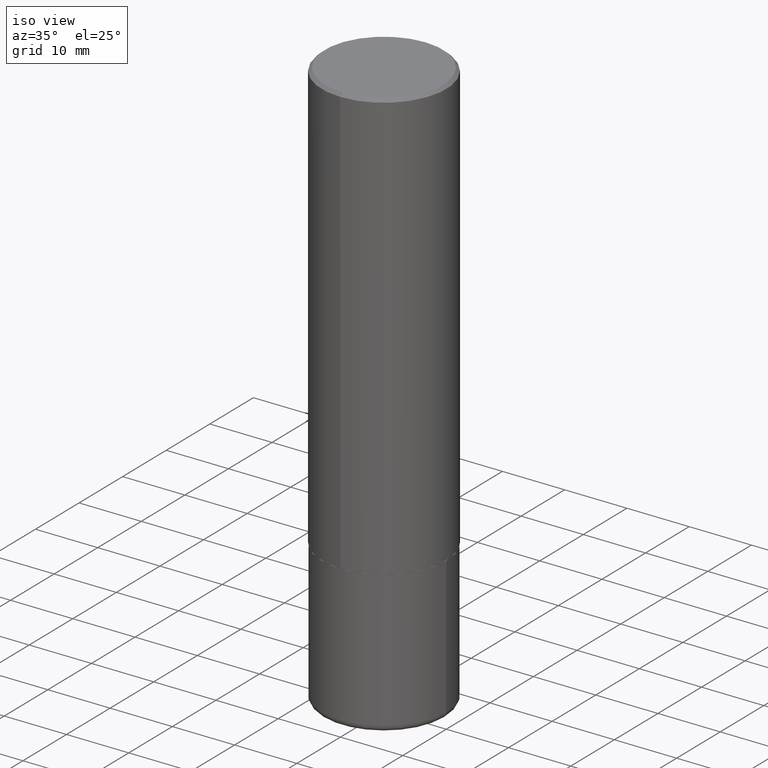
[diagram: clean part render]
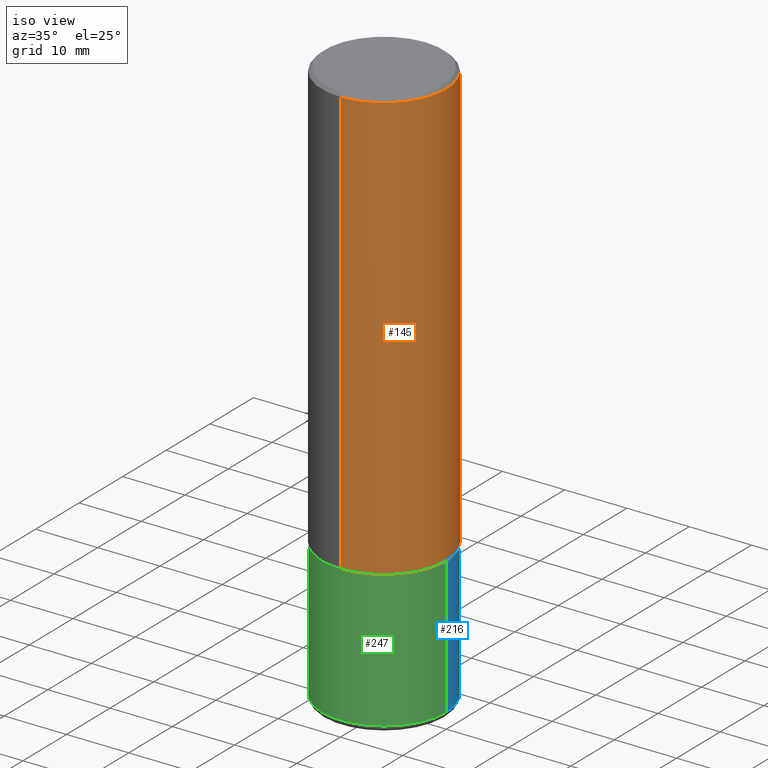
[diagram: same view with three faces highlighted in distinct colors, each labeled with its STEP entity id]
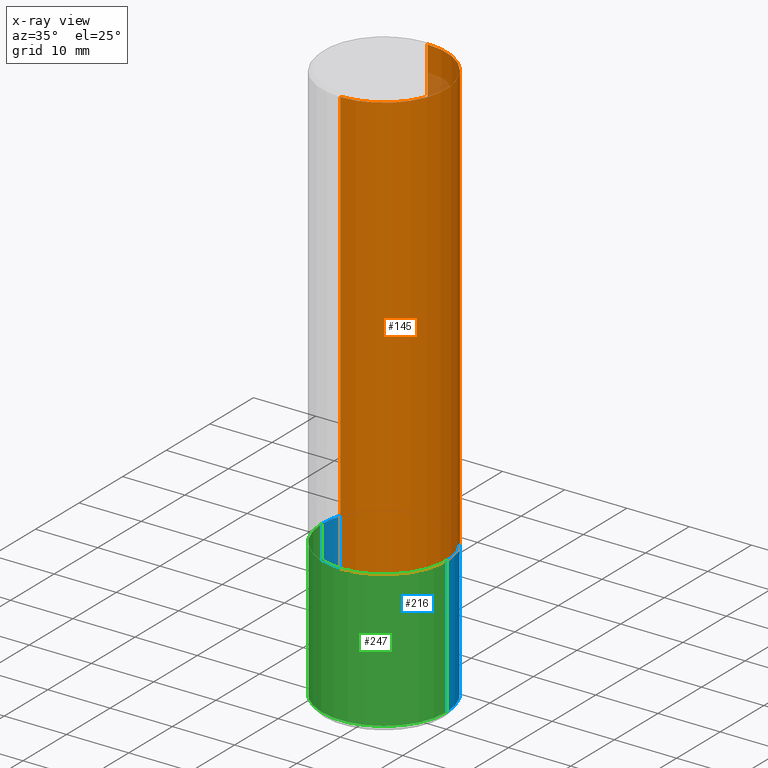
[diagram: x-ray of the same camera — body ghosted, the three highlighted faces saturated]
A machine part, iso view with three faces highlighted in distinct colors.
The next image is the same camera in x-ray (body ghosted, the three faces saturated) — at least one of them is partly hidden behind the body in this view.
Their STEP definitions:

[orange] entity #145 — the highlighted cylindrical surface (partial cylindrical patch) has radius 10 mm, axis along (-0, 0, 1).
#1 = CARTESIAN_POINT ( 'NONE',  ( 6.641805514718476328E-29, -9.479492231809431685E-15, -2.715500000000000025 ) ) ;
#3 = DIRECTION ( 'NONE',  ( -2.445886766605957047E-29, 3.490882795731700761E-15, 1.000000000000000000 ) ) ;
#7 = LINE ( 'NONE', #242, #141 ) ;
#22 = DIRECTION ( 'NONE',  ( -2.445886766605957047E-29, 3.490882795731700761E-15, 1.000000000000000000 ) ) ;
#25 = CARTESIAN_POINT ( 'NONE',  ( 2.749192406205083217E-15, 0.3936999999999999389, -0.02000000000000146105 ) ) ;
#31 = VECTOR ( 'NONE', #59, 39.37007874015748143 ) ;
#52 = AXIS2_PLACEMENT_3D ( 'NONE', #380, #411, #185 ) ;
#54 = ORIENTED_EDGE ( 'NONE', *, *, #278, .T. ) ;
#59 = DIRECTION ( 'NONE',  ( -2.445886766605957047E-29, 3.490882795731700761E-15, 1.000000000000000000 ) ) ;
#69 = DIRECTION ( 'NONE',  ( -2.445886766605957047E-29, 3.490882795731700761E-15, 1.000000000000000000 ) ) ;
#84 = ORIENTED_EDGE ( 'NONE', *, *, #352, .F. ) ;
#95 = DIRECTION ( 'NONE',  ( -6.982962677686265133E-15, -1.000000000000000000, 4.163344669033670901E-15 ) ) ;
#101 = VERTEX_POINT ( 'NONE', #209 ) ;
#140 = CARTESIAN_POINT ( 'NONE',  ( 2.797406750687549496E-15, 0.3936999999999908906, -2.715500000000001801 ) ) ;
#141 = VECTOR ( 'NONE', #22, 39.37007874015748143 ) ;
#145 = ADVANCED_FACE ( 'NONE', ( #212 ), #407, .T. ) ;
#149 = EDGE_LOOP ( 'NONE', ( #54, #328, #84, #254 ) ) ;
#155 = CARTESIAN_POINT ( 'NONE',  ( -2.749192406205018924E-15, -0.3937000000000098754, -2.715499999999998249 ) ) ;
#179 = EDGE_CURVE ( 'NONE', #317, #101, #214, .T. ) ;
#185 = DIRECTION ( 'NONE',  ( -6.982962677686265922E-15, -1.000000000000000000, 3.490882795731701156E-15 ) ) ;
#209 = CARTESIAN_POINT ( 'NONE',  ( -2.700978061722651252E-15, -0.3937000000000001054, -0.01999999999999870978 ) ) ;
#212 = FACE_OUTER_BOUND ( 'NONE', #149, .T. ) ;
#214 = LINE ( 'NONE', #344, #31 ) ;
#224 = DIRECTION ( 'NONE',  ( -6.982962677686265133E-15, -1.000000000000000000, 3.491137977679279424E-15 ) ) ;
#242 = CARTESIAN_POINT ( 'NONE',  ( 2.797406750687515575E-15, 0.3937000000000002164, -1.374360556679571455E-15 ) ) ;
#251 = CIRCLE ( 'NONE', #345, 0.3937000000000000499 ) ;
#254 = ORIENTED_EDGE ( 'NONE', *, *, #179, .F. ) ;
#278 = EDGE_CURVE ( 'NONE', #317, #397, #285, .T. ) ;
#285 = CIRCLE ( 'NONE', #339, 0.3937000000000003830 ) ;
#317 = VERTEX_POINT ( 'NONE', #155 ) ;
#328 = ORIENTED_EDGE ( 'NONE', *, *, #384, .T. ) ;
#339 = AXIS2_PLACEMENT_3D ( 'NONE', #1, #69, #95 ) ;
#344 = CARTESIAN_POINT ( 'NONE',  ( -2.749192406205084400E-15, -0.3937000000000002164, 1.374360556679571455E-15 ) ) ;
#345 = AXIS2_PLACEMENT_3D ( 'NONE', #392, #3, #224 ) ;
#352 = EDGE_CURVE ( 'NONE', #101, #395, #251, .T. ) ;
#380 = CARTESIAN_POINT ( 'NONE',  ( 0.000000000000000000, 0.000000000000000000, 0.000000000000000000 ) ) ;
#384 = EDGE_CURVE ( 'NONE', #397, #395, #7, .T. ) ;
#392 = CARTESIAN_POINT ( 'NONE',  ( 4.891773533211934694E-31, -6.981765591463430858E-17, -0.02000000000000008715 ) ) ;
#395 = VERTEX_POINT ( 'NONE', #25 ) ;
#397 = VERTEX_POINT ( 'NONE', #140 ) ;
#407 = CYLINDRICAL_SURFACE ( 'NONE', #52, 0.3937000000000002164 ) ;
#411 = DIRECTION ( 'NONE',  ( -2.445886766605957047E-29, 3.490882795731700761E-15, 1.000000000000000000 ) ) ;

[blue] entity #216 — the highlighted cylindrical surface (partial cylindrical patch) has radius 10 mm, axis along (-0, 0, 1).
#19 = ORIENTED_EDGE ( 'NONE', *, *, #272, .F. ) ;
#30 = VERTEX_POINT ( 'NONE', #234 ) ;
#32 = VERTEX_POINT ( 'NONE', #364 ) ;
#62 = FACE_OUTER_BOUND ( 'NONE', #366, .T. ) ;
#64 = DIRECTION ( 'NONE',  ( -2.445468806185136877E-29, 3.491481338843145188E-15, 1.000000000000000000 ) ) ;
#94 = DIRECTION ( 'NONE',  ( 1.000000000000000000, -6.982962677686267499E-15, 0.000000000000000000 ) ) ;
#97 = DIRECTION ( 'NONE',  ( -2.445468806185136597E-29, 3.491481338843145583E-15, 1.000000000000000000 ) ) ;
#104 = VERTEX_POINT ( 'NONE', #178 ) ;
#121 = DIRECTION ( 'NONE',  ( -2.445468806185136877E-29, 3.491481338843145188E-15, 1.000000000000000000 ) ) ;
#124 = DIRECTION ( 'NONE',  ( 1.000000000000000000, -6.982962677686267499E-15, 0.000000000000000000 ) ) ;
#178 = CARTESIAN_POINT ( 'NONE',  ( -0.3937000000000001054, -9.711174293851935623E-15, -3.582599999999999785 ) ) ;
#184 = CARTESIAN_POINT ( 'NONE',  ( 6.643116012001922516E-29, -9.484609056967403598E-15, -2.716499999999999915 ) ) ;
#190 = CARTESIAN_POINT ( 'NONE',  ( -0.3937000000000000499, 2.797406750687514786E-15, -1.936584745033356735E-29 ) ) ;
#201 = EDGE_CURVE ( 'NONE', #104, #32, #277, .T. ) ;
#216 = ADVANCED_FACE ( 'NONE', ( #62 ), #406, .T. ) ;
#226 = CARTESIAN_POINT ( 'NONE',  ( 0.3937000000000000499, -1.223380146317248839E-14, -2.716499999999999915 ) ) ;
#234 = CARTESIAN_POINT ( 'NONE',  ( 0.3937000000000001054, -1.525777345074453441E-14, -3.582599999999999785 ) ) ;
#246 = DIRECTION ( 'NONE',  ( -2.445468806185136597E-29, 3.491481338843145583E-15, 1.000000000000000000 ) ) ;
#248 = AXIS2_PLACEMENT_3D ( 'NONE', #362, #97, #124 ) ;
#265 = EDGE_CURVE ( 'NONE', #30, #360, #283, .T. ) ;
#272 = EDGE_CURVE ( 'NONE', #360, #32, #319, .T. ) ;
#277 = LINE ( 'NONE', #190, #307 ) ;
#280 = VECTOR ( 'NONE', #121, 39.37007874015748143 ) ;
#281 = CARTESIAN_POINT ( 'NONE',  ( 0.000000000000000000, 0.000000000000000000, 0.000000000000000000 ) ) ;
#283 = LINE ( 'NONE', #418, #280 ) ;
#299 = AXIS2_PLACEMENT_3D ( 'NONE', #184, #410, #94 ) ;
#307 = VECTOR ( 'NONE', #64, 39.37007874015748143 ) ;
#309 = DIRECTION ( 'NONE',  ( 1.000000000000000000, -6.982962677686265922E-15, 4.876176775795935793E-29 ) ) ;
#319 = CIRCLE ( 'NONE', #299, 0.3937000000000000499 ) ;
#331 = CIRCLE ( 'NONE', #248, 0.3937000000000000499 ) ;
#332 = ORIENTED_EDGE ( 'NONE', *, *, #348, .T. ) ;
#348 = EDGE_CURVE ( 'NONE', #30, #104, #331, .T. ) ;
#357 = ORIENTED_EDGE ( 'NONE', *, *, #201, .T. ) ;
#360 = VERTEX_POINT ( 'NONE', #226 ) ;
#362 = CARTESIAN_POINT ( 'NONE',  ( 8.761136545038868759E-29, -1.250858104453945120E-14, -3.582599999999999785 ) ) ;
#364 = CARTESIAN_POINT ( 'NONE',  ( -0.3937000000000000499, -8.199188300065914189E-15, -2.716499999999999915 ) ) ;
#366 = EDGE_LOOP ( 'NONE', ( #332, #357, #19, #398 ) ) ;
#398 = ORIENTED_EDGE ( 'NONE', *, *, #265, .F. ) ;
#406 = CYLINDRICAL_SURFACE ( 'NONE', #414, 0.3937000000000000499 ) ;
#410 = DIRECTION ( 'NONE',  ( -2.445468806185136597E-29, 3.491481338843145583E-15, 1.000000000000000000 ) ) ;
#414 = AXIS2_PLACEMENT_3D ( 'NONE', #281, #246, #309 ) ;
#418 = CARTESIAN_POINT ( 'NONE',  ( 0.3937000000000000499, -2.749192406205083217E-15, 1.919750796630860172E-29 ) ) ;

[green] entity #247 — the highlighted cylindrical surface (partial cylindrical patch) has radius 10 mm, axis along (-0, 0, 1).
#26 = CIRCLE ( 'NONE', #232, 0.3937000000000000499 ) ;
#29 = DIRECTION ( 'NONE',  ( -2.445468806185136597E-29, 3.491481338843145583E-15, 1.000000000000000000 ) ) ;
#30 = VERTEX_POINT ( 'NONE', #234 ) ;
#32 = VERTEX_POINT ( 'NONE', #364 ) ;
#33 = DIRECTION ( 'NONE',  ( 1.000000000000000000, -6.982962677686265922E-15, 4.876176775795935793E-29 ) ) ;
#34 = DIRECTION ( 'NONE',  ( -2.445468806185136597E-29, 3.491481338843145583E-15, 1.000000000000000000 ) ) ;
#64 = DIRECTION ( 'NONE',  ( -2.445468806185136877E-29, 3.491481338843145188E-15, 1.000000000000000000 ) ) ;
#88 = EDGE_LOOP ( 'NONE', ( #229, #292, #367, #356 ) ) ;
#104 = VERTEX_POINT ( 'NONE', #178 ) ;
#116 = CARTESIAN_POINT ( 'NONE',  ( 8.761136545038868759E-29, -1.250858104453945120E-14, -3.582599999999999785 ) ) ;
#121 = DIRECTION ( 'NONE',  ( -2.445468806185136877E-29, 3.491481338843145188E-15, 1.000000000000000000 ) ) ;
#143 = DIRECTION ( 'NONE',  ( 1.000000000000000000, -6.982962677686267499E-15, 0.000000000000000000 ) ) ;
#146 = AXIS2_PLACEMENT_3D ( 'NONE', #116, #34, #143 ) ;
#165 = EDGE_CURVE ( 'NONE', #32, #360, #26, .T. ) ;
#176 = CIRCLE ( 'NONE', #146, 0.3937000000000000499 ) ;
#178 = CARTESIAN_POINT ( 'NONE',  ( -0.3937000000000001054, -9.711174293851935623E-15, -3.582599999999999785 ) ) ;
#190 = CARTESIAN_POINT ( 'NONE',  ( -0.3937000000000000499, 2.797406750687514786E-15, -1.936584745033356735E-29 ) ) ;
#201 = EDGE_CURVE ( 'NONE', #104, #32, #277, .T. ) ;
#226 = CARTESIAN_POINT ( 'NONE',  ( 0.3937000000000000499, -1.223380146317248839E-14, -2.716499999999999915 ) ) ;
#229 = ORIENTED_EDGE ( 'NONE', *, *, #201, .F. ) ;
#232 = AXIS2_PLACEMENT_3D ( 'NONE', #274, #405, #243 ) ;
#234 = CARTESIAN_POINT ( 'NONE',  ( 0.3937000000000001054, -1.525777345074453441E-14, -3.582599999999999785 ) ) ;
#243 = DIRECTION ( 'NONE',  ( 1.000000000000000000, -6.982962677686267499E-15, 0.000000000000000000 ) ) ;
#244 = FACE_OUTER_BOUND ( 'NONE', #88, .T. ) ;
#247 = ADVANCED_FACE ( 'NONE', ( #244 ), #250, .T. ) ;
#250 = CYLINDRICAL_SURFACE ( 'NONE', #303, 0.3937000000000000499 ) ;
#265 = EDGE_CURVE ( 'NONE', #30, #360, #283, .T. ) ;
#271 = EDGE_CURVE ( 'NONE', #104, #30, #176, .T. ) ;
#274 = CARTESIAN_POINT ( 'NONE',  ( 6.643116012001922516E-29, -9.484609056967403598E-15, -2.716499999999999915 ) ) ;
#277 = LINE ( 'NONE', #190, #307 ) ;
#280 = VECTOR ( 'NONE', #121, 39.37007874015748143 ) ;
#283 = LINE ( 'NONE', #418, #280 ) ;
#292 = ORIENTED_EDGE ( 'NONE', *, *, #271, .T. ) ;
#303 = AXIS2_PLACEMENT_3D ( 'NONE', #385, #29, #33 ) ;
#307 = VECTOR ( 'NONE', #64, 39.37007874015748143 ) ;
#356 = ORIENTED_EDGE ( 'NONE', *, *, #165, .F. ) ;
#360 = VERTEX_POINT ( 'NONE', #226 ) ;
#364 = CARTESIAN_POINT ( 'NONE',  ( -0.3937000000000000499, -8.199188300065914189E-15, -2.716499999999999915 ) ) ;
#367 = ORIENTED_EDGE ( 'NONE', *, *, #265, .T. ) ;
#385 = CARTESIAN_POINT ( 'NONE',  ( 0.000000000000000000, 0.000000000000000000, 0.000000000000000000 ) ) ;
#405 = DIRECTION ( 'NONE',  ( -2.445468806185136597E-29, 3.491481338843145583E-15, 1.000000000000000000 ) ) ;
#418 = CARTESIAN_POINT ( 'NONE',  ( 0.3937000000000000499, -2.749192406205083217E-15, 1.919750796630860172E-29 ) ) ;